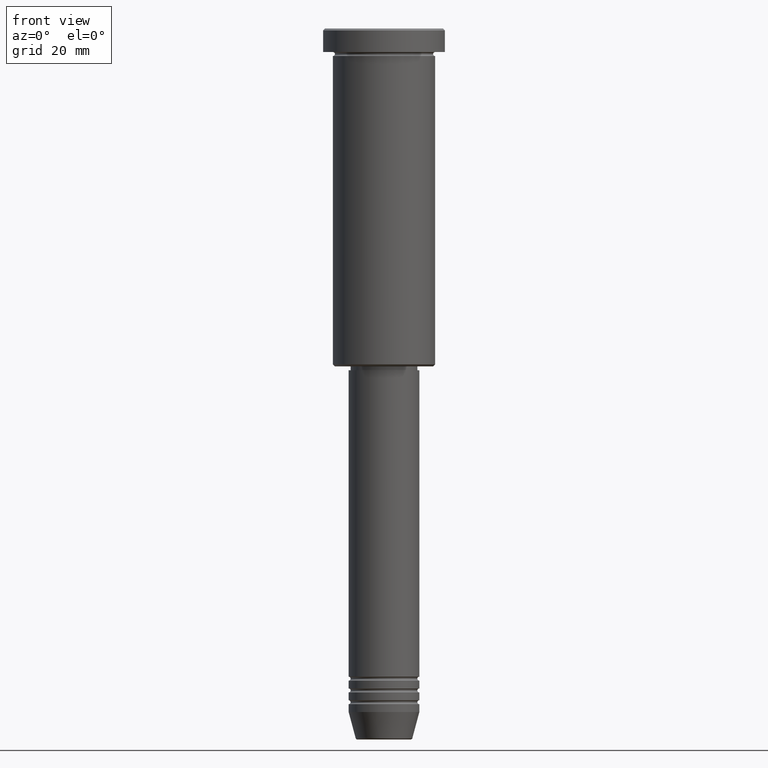
[diagram: clean part render]
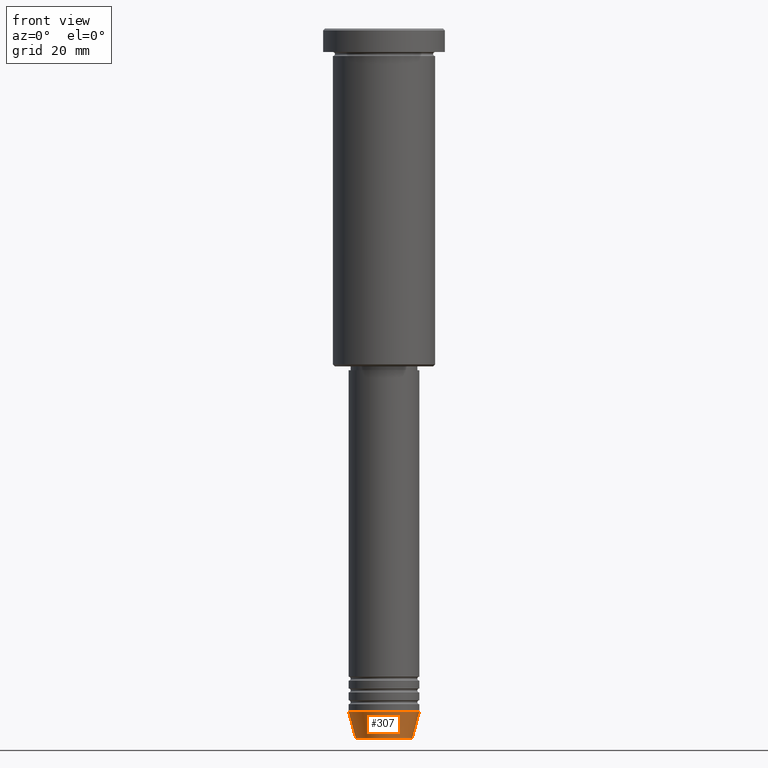
[diagram: same view with one face highlighted and labeled with its STEP entity id]
A machine part, front view. The second image highlights one B-rep face of the part: STEP entity #307.
In plain terms, the highlighted conical surface has half-angle 15 deg.
Its self-contained STEP definition (entity closure, byte-faithful):
#9 = CARTESIAN_POINT ( 'NONE',  ( -9.000000000000000000, 1.102182119232617714E-15, -174.0000000000000284 ) ) ;
#45 = AXIS2_PLACEMENT_3D ( 'NONE', #421, #1044, #391 ) ;
#69 = VERTEX_POINT ( 'NONE', #380 ) ;
#137 = CIRCLE ( 'NONE', #414, 7.223655072137196598 ) ;
#145 = LINE ( 'NONE', #434, #981 ) ;
#165 = EDGE_LOOP ( 'NONE', ( #984, #608, #1101, #282 ) ) ;
#183 = CARTESIAN_POINT ( 'NONE',  ( -9.000000000000000000, 1.102182119232617714E-15, -174.0000000000000284 ) ) ;
#232 = CONICAL_SURFACE ( 'NONE', #253, 9.000000000000000000, 0.2617993877991500740 ) ;
#246 = DIRECTION ( 'NONE',  ( -0.000000000000000000, -0.000000000000000000, 1.000000000000000000 ) ) ;
#253 = AXIS2_PLACEMENT_3D ( 'NONE', #897, #246, #441 ) ;
#255 = EDGE_CURVE ( 'NONE', #1134, #1043, #145, .T. ) ;
#256 = VECTOR ( 'NONE', #743, 1000.000000000000000 ) ;
#276 = FACE_OUTER_BOUND ( 'NONE', #165, .T. ) ;
#282 = ORIENTED_EDGE ( 'NONE', *, *, #1038, .F. ) ;
#306 = EDGE_CURVE ( 'NONE', #69, #1134, #137, .T. ) ;
#307 = ADVANCED_FACE ( 'NONE', ( #276 ), #232, .T. ) ;
#380 = CARTESIAN_POINT ( 'NONE',  ( -7.223655072137197486, 9.934123627281769054E-16, -180.6294095225512706 ) ) ;
#391 = DIRECTION ( 'NONE',  ( 1.000000000000000000, 0.000000000000000000, 0.000000000000000000 ) ) ;
#414 = AXIS2_PLACEMENT_3D ( 'NONE', #590, #477, #465 ) ;
#421 = CARTESIAN_POINT ( 'NONE',  ( 0.000000000000000000, 0.000000000000000000, -174.0000000000000284 ) ) ;
#434 = CARTESIAN_POINT ( 'NONE',  ( 9.000000000000000000, 0.000000000000000000, -174.0000000000000284 ) ) ;
#439 = DIRECTION ( 'NONE',  ( 0.2588190451025213501, 0.000000000000000000, 0.9659258262890680902 ) ) ;
#441 = DIRECTION ( 'NONE',  ( 1.000000000000000000, 0.000000000000000000, 0.000000000000000000 ) ) ;
#465 = DIRECTION ( 'NONE',  ( 1.000000000000000000, 0.000000000000000000, 0.000000000000000000 ) ) ;
#477 = DIRECTION ( 'NONE',  ( -0.000000000000000000, -0.000000000000000000, 1.000000000000000000 ) ) ;
#502 = VERTEX_POINT ( 'NONE', #183 ) ;
#566 = CIRCLE ( 'NONE', #45, 9.000000000000000000 ) ;
#590 = CARTESIAN_POINT ( 'NONE',  ( 0.000000000000000000, 0.000000000000000000, -180.6294095225512706 ) ) ;
#608 = ORIENTED_EDGE ( 'NONE', *, *, #306, .T. ) ;
#677 = CARTESIAN_POINT ( 'NONE',  ( 9.000000000000000000, 0.000000000000000000, -174.0000000000000284 ) ) ;
#743 = DIRECTION ( 'NONE',  ( -0.2588190451025213501, 3.169619151431772337E-17, 0.9659258262890680902 ) ) ;
#824 = LINE ( 'NONE', #9, #256 ) ;
#897 = CARTESIAN_POINT ( 'NONE',  ( 0.000000000000000000, 0.000000000000000000, -174.0000000000000284 ) ) ;
#981 = VECTOR ( 'NONE', #439, 1000.000000000000000 ) ;
#984 = ORIENTED_EDGE ( 'NONE', *, *, #999, .F. ) ;
#999 = EDGE_CURVE ( 'NONE', #69, #502, #824, .T. ) ;
#1038 = EDGE_CURVE ( 'NONE', #502, #1043, #566, .T. ) ;
#1043 = VERTEX_POINT ( 'NONE', #677 ) ;
#1044 = DIRECTION ( 'NONE',  ( -0.000000000000000000, -0.000000000000000000, 1.000000000000000000 ) ) ;
#1101 = ORIENTED_EDGE ( 'NONE', *, *, #255, .T. ) ;
#1134 = VERTEX_POINT ( 'NONE', #1149 ) ;
#1149 = CARTESIAN_POINT ( 'NONE',  ( 7.223655072137196598, 0.000000000000000000, -180.6294095225512706 ) ) ;